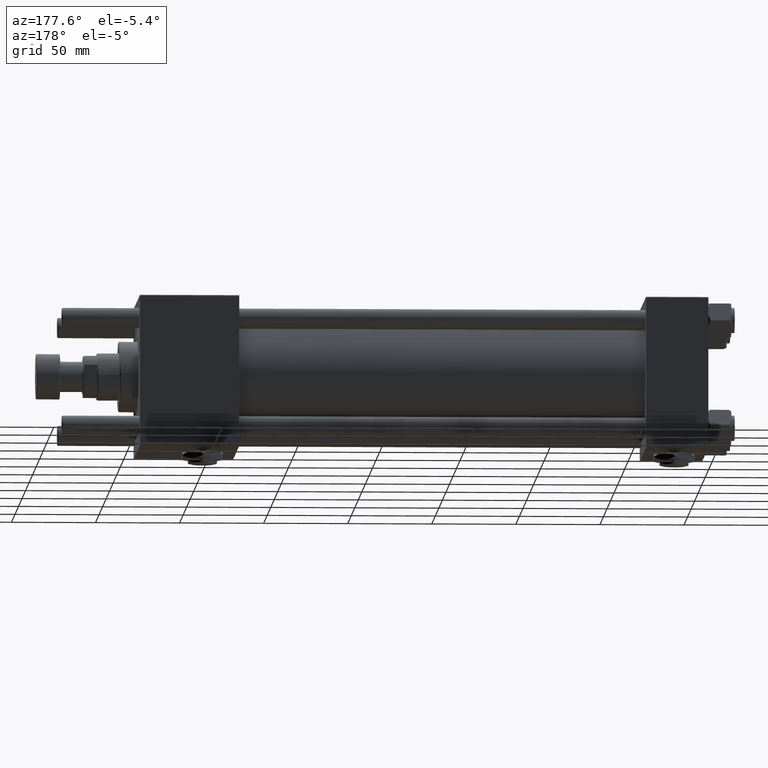
[diagram: clean part render]
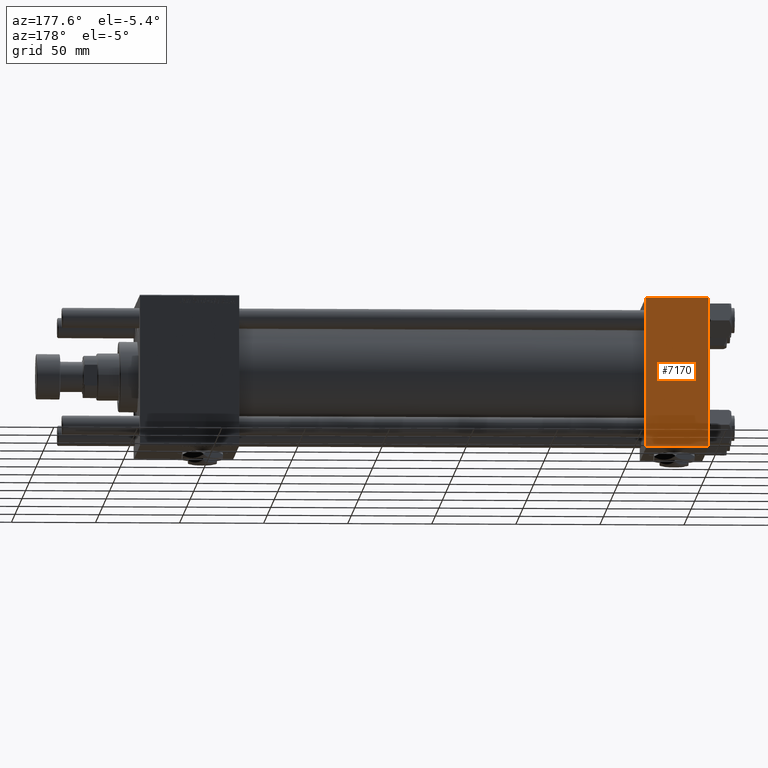
[diagram: same view with one face highlighted and labeled with its STEP entity id]
A machine part, auxiliary view. The second image highlights one B-rep face of the part: STEP entity #7170.
In plain terms, the highlighted planar face has unit normal (0, 1, 0).
Its self-contained STEP definition (entity closure, byte-faithful):
#1452 = DIRECTION ( 'NONE',  ( -1.000000000000000000, 0.000000000000000000, 0.000000000000000000 ) ) ;
#2332 = CARTESIAN_POINT ( 'NONE',  ( 0.000000000000000000, 44.99999999999998579, 45.00000000000001421 ) ) ;
#2693 = ORIENTED_EDGE ( 'NONE', *, *, #36615, .T. ) ;
#3374 = VECTOR ( 'NONE', #1452, 1000.000000000000000 ) ;
#6841 = LINE ( 'NONE', #2332, #55883 ) ;
#7170 = ADVANCED_FACE ( 'NONE', ( #9315 ), #41675, .T. ) ;
#9315 = FACE_OUTER_BOUND ( 'NONE', #25178, .T. ) ;
#12366 = ORIENTED_EDGE ( 'NONE', *, *, #45154, .T. ) ;
#14111 = DIRECTION ( 'NONE',  ( 0.000000000000000000, -0.000000000000000000, 1.000000000000000000 ) ) ;
#19298 = DIRECTION ( 'NONE',  ( 1.000000000000000000, 0.000000000000000000, 0.000000000000000000 ) ) ;
#22149 = LINE ( 'NONE', #50312, #43655 ) ;
#22207 = DIRECTION ( 'NONE',  ( -0.000000000000000000, 1.000000000000000000, 0.000000000000000000 ) ) ;
#23931 = VERTEX_POINT ( 'NONE', #51767 ) ;
#24855 = CARTESIAN_POINT ( 'NONE',  ( 0.000000000000000000, 44.99999999999998579, 44.50000000000001421 ) ) ;
#25178 = EDGE_LOOP ( 'NONE', ( #39135, #2693, #56635, #12366 ) ) ;
#28279 = VERTEX_POINT ( 'NONE', #24855 ) ;
#33229 = EDGE_CURVE ( 'NONE', #28279, #23931, #6841, .T. ) ;
#36615 = EDGE_CURVE ( 'NONE', #55837, #23931, #42523, .T. ) ;
#37825 = EDGE_CURVE ( 'NONE', #51560, #55837, #22149, .T. ) ;
#38432 = CARTESIAN_POINT ( 'NONE',  ( 37.00000000000000000, 44.99999999999998579, 44.50000000000001421 ) ) ;
#38442 = AXIS2_PLACEMENT_3D ( 'NONE', #55155, #22207, #14111 ) ;
#39135 = ORIENTED_EDGE ( 'NONE', *, *, #37825, .T. ) ;
#41675 = PLANE ( 'NONE',  #38442 ) ;
#42523 = LINE ( 'NONE', #47005, #3374 ) ;
#43655 = VECTOR ( 'NONE', #49719, 1000.000000000000000 ) ;
#45154 = EDGE_CURVE ( 'NONE', #28279, #51560, #51075, .T. ) ;
#46596 = VECTOR ( 'NONE', #19298, 1000.000000000000000 ) ;
#47005 = CARTESIAN_POINT ( 'NONE',  ( 37.00000000000000000, 44.99999999999998579, -44.49999999999998579 ) ) ;
#49719 = DIRECTION ( 'NONE',  ( 0.000000000000000000, 0.000000000000000000, -1.000000000000000000 ) ) ;
#50312 = CARTESIAN_POINT ( 'NONE',  ( 37.00000000000000000, 44.99999999999998579, 45.00000000000001421 ) ) ;
#51075 = LINE ( 'NONE', #56153, #46596 ) ;
#51560 = VERTEX_POINT ( 'NONE', #38432 ) ;
#51767 = CARTESIAN_POINT ( 'NONE',  ( 0.000000000000000000, 44.99999999999998579, -44.49999999999995737 ) ) ;
#52669 = DIRECTION ( 'NONE',  ( 0.000000000000000000, 0.000000000000000000, -1.000000000000000000 ) ) ;
#54444 = CARTESIAN_POINT ( 'NONE',  ( 37.00000000000000000, 44.99999999999998579, -44.49999999999995737 ) ) ;
#55155 = CARTESIAN_POINT ( 'NONE',  ( 37.00000000000000000, 44.99999999999998579, 45.00000000000001421 ) ) ;
#55837 = VERTEX_POINT ( 'NONE', #54444 ) ;
#55883 = VECTOR ( 'NONE', #52669, 1000.000000000000000 ) ;
#56153 = CARTESIAN_POINT ( 'NONE',  ( 37.00000000000000000, 44.99999999999998579, 44.50000000000001421 ) ) ;
#56635 = ORIENTED_EDGE ( 'NONE', *, *, #33229, .F. ) ;